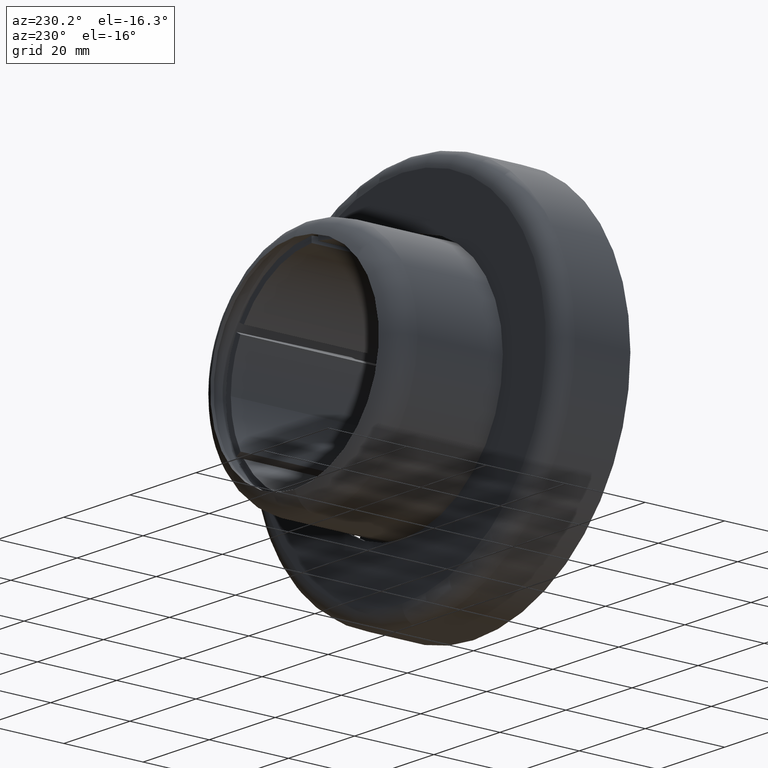
[diagram: clean part render]
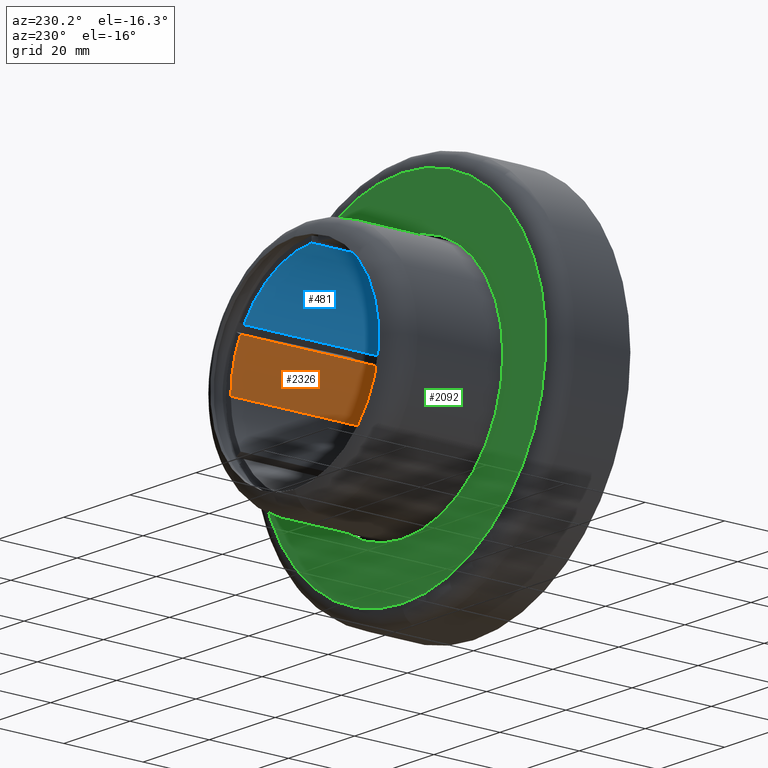
[diagram: same view with three faces highlighted in distinct colors, each labeled with its STEP entity id]
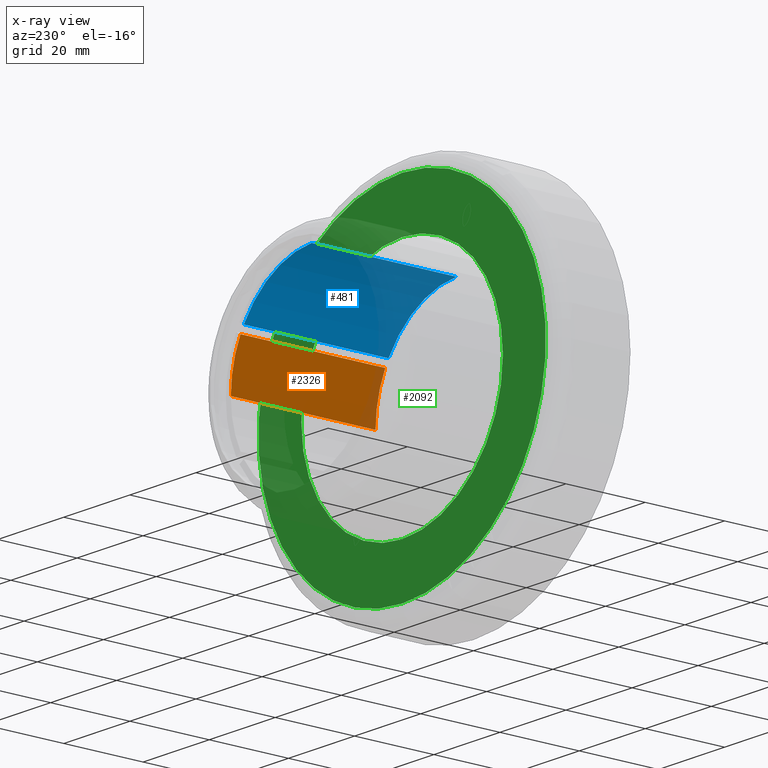
[diagram: x-ray of the same camera — body ghosted, the three highlighted faces saturated]
A machine part, auxiliary view with three faces highlighted in distinct colors.
The next image is the same camera in x-ray (body ghosted, the three faces saturated) — at least one of them is partly hidden behind the body in this view.
Their STEP definitions:

[orange] entity #2326 — the highlighted cylindrical surface (partial cylindrical patch) has radius 25.45 mm, axis along (0, -1, 0).
#176 = EDGE_LOOP ( 'NONE', ( #1952, #2553, #1326, #2351 ) ) ;
#190 = AXIS2_PLACEMENT_3D ( 'NONE', #2382, #2440, #830 ) ;
#400 = FACE_OUTER_BOUND ( 'NONE', #176, .T. ) ;
#615 = VECTOR ( 'NONE', #1071, 1000.000000000000000 ) ;
#650 = CARTESIAN_POINT ( 'NONE',  ( 25.45000000000000600, 3.500000000000000000, 0.0000000000000000000 ) ) ;
#682 = EDGE_CURVE ( 'NONE', #1126, #1433, #1895, .T. ) ;
#830 = DIRECTION ( 'NONE',  ( 1.000000000000000000, 3.748911244743592100E-016, 0.0000000000000000000 ) ) ;
#849 = EDGE_CURVE ( 'NONE', #2572, #2354, #1934, .T. ) ;
#896 = CARTESIAN_POINT ( 'NONE',  ( 25.45000000000000300, 40.00000000000001400, 0.0000000000000000000 ) ) ;
#1055 = CARTESIAN_POINT ( 'NONE',  ( 0.0000000000000000000, 40.00000000000000700, 0.0000000000000000000 ) ) ;
#1068 = CARTESIAN_POINT ( 'NONE',  ( 22.52332570253712500, 3.500000000000000000, 11.84914761902436800 ) ) ;
#1071 = DIRECTION ( 'NONE',  ( 3.802133645976562900E-016, -1.000000000000000000, -0.0000000000000000000 ) ) ;
#1078 = CARTESIAN_POINT ( 'NONE',  ( 22.52332570253710400, 40.00000000000002100, 11.84914761902436600 ) ) ;
#1126 = VERTEX_POINT ( 'NONE', #896 ) ;
#1223 = VECTOR ( 'NONE', #2090, 1000.000000000000000 ) ;
#1291 = CARTESIAN_POINT ( 'NONE',  ( 22.52332570253711800, 3.500000000000008400, 11.84914761902436600 ) ) ;
#1326 = ORIENTED_EDGE ( 'NONE', *, *, #849, .T. ) ;
#1433 = VERTEX_POINT ( 'NONE', #1078 ) ;
#1513 = DIRECTION ( 'NONE',  ( 1.776356839400250500E-015, 0.0000000000000000000, 1.000000000000000000 ) ) ;
#1550 = CARTESIAN_POINT ( 'NONE',  ( 1.387778780781445700E-014, 3.500000000000000000, 0.0000000000000000000 ) ) ;
#1578 = DIRECTION ( 'NONE',  ( 3.802133645976562900E-016, -1.000000000000000000, -0.0000000000000000000 ) ) ;
#1886 = EDGE_CURVE ( 'NONE', #1126, #2572, #2744, .T. ) ;
#1895 = CIRCLE ( 'NONE', #2085, 25.44999999999999900 ) ;
#1921 = AXIS2_PLACEMENT_3D ( 'NONE', #1550, #3257, #1513 ) ;
#1928 = LINE ( 'NONE', #1291, #1223 ) ;
#1934 = CIRCLE ( 'NONE', #1921, 25.44999999999999200 ) ;
#1952 = ORIENTED_EDGE ( 'NONE', *, *, #682, .F. ) ;
#2085 = AXIS2_PLACEMENT_3D ( 'NONE', #1055, #1578, #2153 ) ;
#2090 = DIRECTION ( 'NONE',  ( 3.802133645976562900E-016, -1.000000000000000000, -0.0000000000000000000 ) ) ;
#2153 = DIRECTION ( 'NONE',  ( 1.000000000000000000, 2.726480905268066400E-016, 0.0000000000000000000 ) ) ;
#2220 = CYLINDRICAL_SURFACE ( 'NONE', #190, 25.44999999999999200 ) ;
#2326 = ADVANCED_FACE ( 'NONE', ( #400 ), #2220, .F. ) ;
#2351 = ORIENTED_EDGE ( 'NONE', *, *, #2770, .F. ) ;
#2354 = VERTEX_POINT ( 'NONE', #1068 ) ;
#2382 = CARTESIAN_POINT ( 'NONE',  ( 1.387778780781445700E-014, 3.500000000000000000, 0.0000000000000000000 ) ) ;
#2440 = DIRECTION ( 'NONE',  ( 3.802133645976562900E-016, -1.000000000000000000, -0.0000000000000000000 ) ) ;
#2553 = ORIENTED_EDGE ( 'NONE', *, *, #1886, .T. ) ;
#2572 = VERTEX_POINT ( 'NONE', #650 ) ;
#2744 = LINE ( 'NONE', #2958, #615 ) ;
#2770 = EDGE_CURVE ( 'NONE', #1433, #2354, #1928, .T. ) ;
#2958 = CARTESIAN_POINT ( 'NONE',  ( 25.45000000000000600, 3.500000000000009800, 0.0000000000000000000 ) ) ;
#3257 = DIRECTION ( 'NONE',  ( -0.0000000000000000000, -1.000000000000000000, -0.0000000000000000000 ) ) ;

[blue] entity #481 — the highlighted cylindrical surface (partial cylindrical patch) has radius 25.45 mm, axis along (0, -1, 0).
#30 = ORIENTED_EDGE ( 'NONE', *, *, #611, .T. ) ;
#77 = EDGE_LOOP ( 'NONE', ( #1481, #2133, #1985, #30 ) ) ;
#93 = VERTEX_POINT ( 'NONE', #1780 ) ;
#284 = EDGE_CURVE ( 'NONE', #2175, #3187, #1996, .T. ) ;
#368 = DIRECTION ( 'NONE',  ( -3.802133645976562900E-016, 1.000000000000000000, 0.0000000000000000000 ) ) ;
#481 = ADVANCED_FACE ( 'NONE', ( #1801 ), #1474, .F. ) ;
#585 = DIRECTION ( 'NONE',  ( 3.802133645976562900E-016, -1.000000000000000000, -0.0000000000000000000 ) ) ;
#595 = CARTESIAN_POINT ( 'NONE',  ( 0.0000000000000000000, 40.00000000000000700, 0.0000000000000000000 ) ) ;
#611 = EDGE_CURVE ( 'NONE', #1976, #93, #1938, .T. ) ;
#673 = AXIS2_PLACEMENT_3D ( 'NONE', #595, #2158, #2171 ) ;
#723 = CARTESIAN_POINT ( 'NONE',  ( 1.387778780781445700E-014, 3.500000000000000000, 0.0000000000000000000 ) ) ;
#755 = DIRECTION ( 'NONE',  ( 8.881784197001252300E-016, 0.0000000000000000000, 1.000000000000000000 ) ) ;
#928 = VECTOR ( 'NONE', #585, 1000.000000000000000 ) ;
#970 = DIRECTION ( 'NONE',  ( 3.802133645976562900E-016, -1.000000000000000000, -0.0000000000000000000 ) ) ;
#979 = DIRECTION ( 'NONE',  ( 1.000000000000000000, 3.748911244743592100E-016, 0.0000000000000000000 ) ) ;
#1427 = CARTESIAN_POINT ( 'NONE',  ( 21.52332570253723200, 3.500000000000000000, 13.58119842659330700 ) ) ;
#1474 = CYLINDRICAL_SURFACE ( 'NONE', #2856, 25.44999999999999200 ) ;
#1481 = ORIENTED_EDGE ( 'NONE', *, *, #2391, .F. ) ;
#1780 = CARTESIAN_POINT ( 'NONE',  ( 1.000000000002030200, 3.500000000000000000, 25.43034604562029300 ) ) ;
#1801 = FACE_OUTER_BOUND ( 'NONE', #77, .T. ) ;
#1869 = DIRECTION ( 'NONE',  ( -0.0000000000000000000, -1.000000000000000000, -0.0000000000000000000 ) ) ;
#1938 = CIRCLE ( 'NONE', #2686, 25.44999999999999200 ) ;
#1976 = VERTEX_POINT ( 'NONE', #1427 ) ;
#1985 = ORIENTED_EDGE ( 'NONE', *, *, #2031, .F. ) ;
#1996 = CIRCLE ( 'NONE', #673, 25.44999999999999900 ) ;
#2031 = EDGE_CURVE ( 'NONE', #1976, #2175, #3371, .T. ) ;
#2133 = ORIENTED_EDGE ( 'NONE', *, *, #284, .F. ) ;
#2158 = DIRECTION ( 'NONE',  ( 3.802133645976562900E-016, -1.000000000000000000, -0.0000000000000000000 ) ) ;
#2171 = DIRECTION ( 'NONE',  ( 1.000000000000000000, 2.726480905268066400E-016, 0.0000000000000000000 ) ) ;
#2175 = VERTEX_POINT ( 'NONE', #2829 ) ;
#2201 = CARTESIAN_POINT ( 'NONE',  ( 21.52332570253722500, 3.500000000000008400, 13.58119842659330500 ) ) ;
#2225 = CARTESIAN_POINT ( 'NONE',  ( 1.000000000002030200, 3.500000000000000400, 25.43034604562029300 ) ) ;
#2308 = VECTOR ( 'NONE', #368, 1000.000000000000000 ) ;
#2391 = EDGE_CURVE ( 'NONE', #3187, #93, #2936, .T. ) ;
#2686 = AXIS2_PLACEMENT_3D ( 'NONE', #2891, #1869, #755 ) ;
#2829 = CARTESIAN_POINT ( 'NONE',  ( 21.52332570253721400, 40.00000000000002100, 13.58119842659330500 ) ) ;
#2856 = AXIS2_PLACEMENT_3D ( 'NONE', #723, #970, #979 ) ;
#2891 = CARTESIAN_POINT ( 'NONE',  ( 1.387778780781445700E-014, 3.500000000000000000, 0.0000000000000000000 ) ) ;
#2936 = LINE ( 'NONE', #2225, #928 ) ;
#3187 = VERTEX_POINT ( 'NONE', #3407 ) ;
#3371 = LINE ( 'NONE', #2201, #2308 ) ;
#3407 = CARTESIAN_POINT ( 'NONE',  ( 1.000000000002015700, 40.00000000000001400, 25.43034604562029000 ) ) ;

[green] entity #2092 — the highlighted planar face has unit normal (0, 1, 0).
#109 = DIRECTION ( 'NONE',  ( 0.0000000000000000000, 0.0000000000000000000, 1.000000000000000000 ) ) ;
#112 = CIRCLE ( 'NONE', #2574, 43.50000000000001400 ) ;
#255 = DIRECTION ( 'NONE',  ( 0.0000000000000000000, 0.0000000000000000000, 1.000000000000000000 ) ) ;
#401 = DIRECTION ( 'NONE',  ( 0.0000000000000000000, 0.0000000000000000000, 1.000000000000000000 ) ) ;
#409 = DIRECTION ( 'NONE',  ( 0.0000000000000000000, -0.0000000000000000000, 1.000000000000000000 ) ) ;
#538 = DIRECTION ( 'NONE',  ( 0.0000000000000000000, 1.000000000000000000, 0.0000000000000000000 ) ) ;
#553 = VERTEX_POINT ( 'NONE', #3441 ) ;
#562 = CIRCLE ( 'NONE', #1492, 30.50000000000000000 ) ;
#679 = CIRCLE ( 'NONE', #3366, 30.50000000000000000 ) ;
#738 = AXIS2_PLACEMENT_3D ( 'NONE', #1304, #538, #255 ) ;
#744 = CARTESIAN_POINT ( 'NONE',  ( 0.0000000000000000000, 18.00000000000000000, 30.50000000000000000 ) ) ;
#855 = CARTESIAN_POINT ( 'NONE',  ( 0.0000000000000000000, 18.00000000000000000, 43.50000000000001400 ) ) ;
#879 = EDGE_LOOP ( 'NONE', ( #2724, #3462 ) ) ;
#920 = DIRECTION ( 'NONE',  ( 0.0000000000000000000, 1.000000000000000000, 0.0000000000000000000 ) ) ;
#954 = CARTESIAN_POINT ( 'NONE',  ( 0.0000000000000000000, 18.00000000000000000, 0.0000000000000000000 ) ) ;
#1129 = EDGE_CURVE ( 'NONE', #1783, #2028, #562, .T. ) ;
#1182 = PLANE ( 'NONE',  #2940 ) ;
#1207 = CARTESIAN_POINT ( 'NONE',  ( 0.0000000000000000000, 18.00000000000000000, 0.0000000000000000000 ) ) ;
#1225 = FACE_OUTER_BOUND ( 'NONE', #3180, .T. ) ;
#1304 = CARTESIAN_POINT ( 'NONE',  ( 0.0000000000000000000, 18.00000000000000000, 0.0000000000000000000 ) ) ;
#1438 = DIRECTION ( 'NONE',  ( 0.0000000000000000000, 1.000000000000000000, 0.0000000000000000000 ) ) ;
#1492 = AXIS2_PLACEMENT_3D ( 'NONE', #3034, #1712, #109 ) ;
#1625 = VERTEX_POINT ( 'NONE', #855 ) ;
#1712 = DIRECTION ( 'NONE',  ( 0.0000000000000000000, 1.000000000000000000, 0.0000000000000000000 ) ) ;
#1720 = DIRECTION ( 'NONE',  ( 0.0000000000000000000, 1.000000000000000000, 0.0000000000000000000 ) ) ;
#1783 = VERTEX_POINT ( 'NONE', #744 ) ;
#1845 = FACE_BOUND ( 'NONE', #879, .T. ) ;
#2028 = VERTEX_POINT ( 'NONE', #2760 ) ;
#2092 = ADVANCED_FACE ( 'NONE', ( #1845, #1225 ), #1182, .T. ) ;
#2108 = EDGE_CURVE ( 'NONE', #553, #1625, #112, .T. ) ;
#2233 = DIRECTION ( 'NONE',  ( 0.0000000000000000000, 0.0000000000000000000, 1.000000000000000000 ) ) ;
#2497 = ORIENTED_EDGE ( 'NONE', *, *, #2851, .T. ) ;
#2512 = CARTESIAN_POINT ( 'NONE',  ( 0.0000000000000000000, 18.00000000000000000, 0.0000000000000000000 ) ) ;
#2527 = EDGE_CURVE ( 'NONE', #2028, #1783, #679, .T. ) ;
#2574 = AXIS2_PLACEMENT_3D ( 'NONE', #2512, #1438, #401 ) ;
#2724 = ORIENTED_EDGE ( 'NONE', *, *, #1129, .F. ) ;
#2760 = CARTESIAN_POINT ( 'NONE',  ( 3.735172737399427500E-015, 18.00000000000000000, -30.50000000000000000 ) ) ;
#2851 = EDGE_CURVE ( 'NONE', #1625, #553, #3191, .T. ) ;
#2902 = ORIENTED_EDGE ( 'NONE', *, *, #2108, .T. ) ;
#2940 = AXIS2_PLACEMENT_3D ( 'NONE', #1207, #1720, #409 ) ;
#3034 = CARTESIAN_POINT ( 'NONE',  ( 0.0000000000000000000, 18.00000000000000000, 0.0000000000000000000 ) ) ;
#3180 = EDGE_LOOP ( 'NONE', ( #2497, #2902 ) ) ;
#3191 = CIRCLE ( 'NONE', #738, 43.50000000000001400 ) ;
#3366 = AXIS2_PLACEMENT_3D ( 'NONE', #954, #920, #2233 ) ;
#3441 = CARTESIAN_POINT ( 'NONE',  ( 5.572142936120458700E-015, 18.00000000000000000, -43.50000000000001400 ) ) ;
#3462 = ORIENTED_EDGE ( 'NONE', *, *, #2527, .F. ) ;